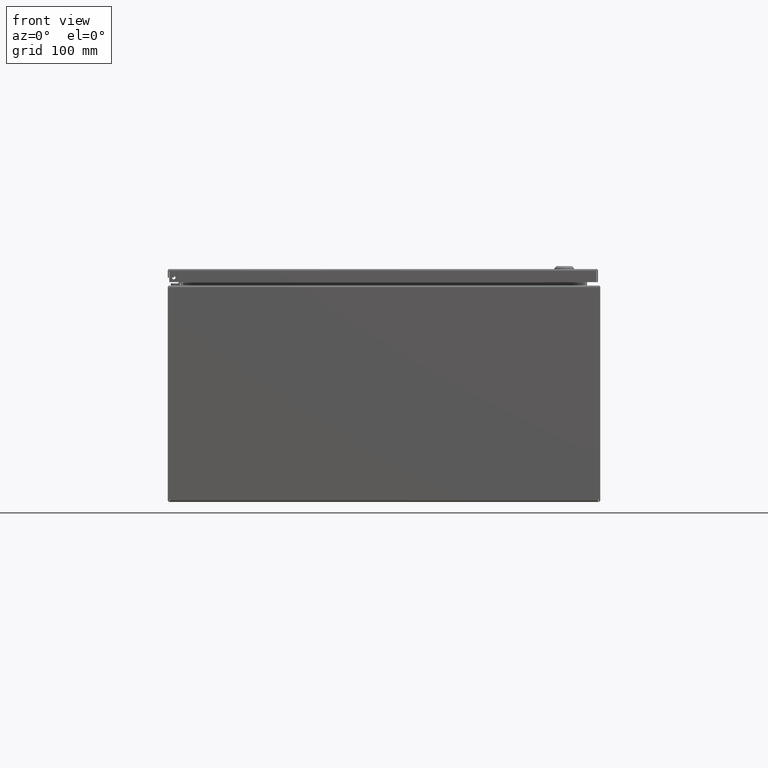
[diagram: clean part render]
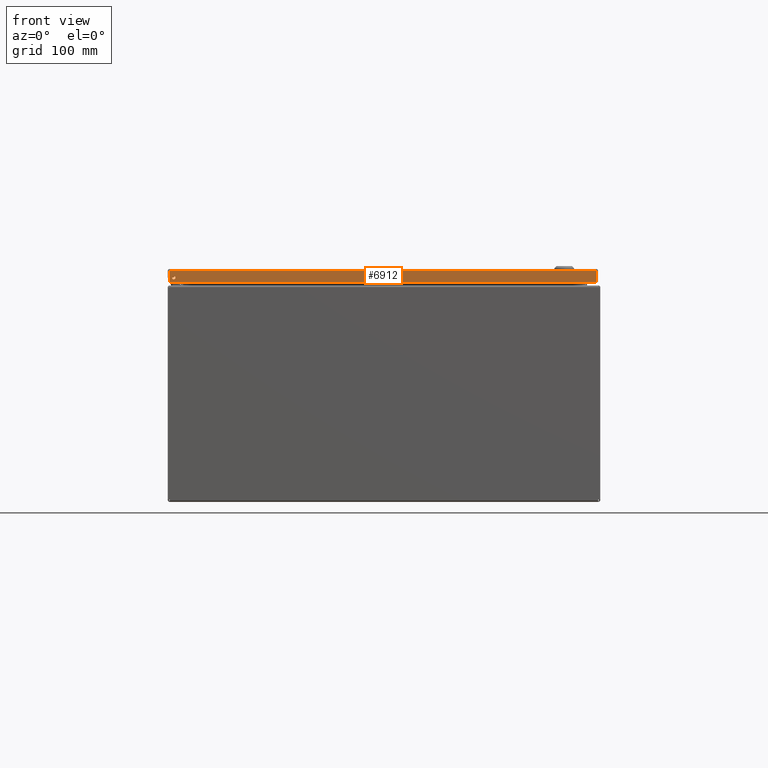
[diagram: same view with one face highlighted and labeled with its STEP entity id]
A machine part, front view. The second image highlights one B-rep face of the part: STEP entity #6912.
In plain terms, the highlighted planar face has unit normal (-0, 1, 0).
Its self-contained STEP definition (entity closure, byte-faithful):
#6480=CARTESIAN_POINT('',(23.633951456543986,5.892567E-017,0.479999999998429));
#6481=VERTEX_POINT('',#6480);
#6482=CARTESIAN_POINT('',(23.539951456543985,0.0,0.479999999998429));
#6483=DIRECTION('',(0.0,1.0,0.0));
#6484=DIRECTION('',(-1.0,0.0,0.0));
#6485=AXIS2_PLACEMENT_3D('',#6482,#6483,#6484);
#6486=CIRCLE('',#6485,0.094000000000000);
#6487=EDGE_CURVE('',#6481,#6481,#6486,.T.);
#6658=CARTESIAN_POINT('',(0.085048543456041,1.537712E-015,0.105250000000000));
#6659=VERTEX_POINT('',#6658);
#6660=CARTESIAN_POINT('',(23.789951456543960,1.537712E-015,0.105250000000000));
#6661=VERTEX_POINT('',#6660);
#6662=CARTESIAN_POINT('',(0.085048543456040,1.537479E-015,0.105250000000000));
#6663=DIRECTION('',(1.0,0.0,0.0));
#6664=VECTOR('',#6663,23.704902913087921);
#6665=LINE('',#6662,#6664);
#6666=EDGE_CURVE('',#6659,#6661,#6665,.T.);
#6747=CARTESIAN_POINT('',(23.789951456543960,1.638181E-015,0.730000000000000));
#6748=VERTEX_POINT('',#6747);
#6749=CARTESIAN_POINT('',(23.789951456543960,1.638181E-015,0.730000000000000));
#6750=DIRECTION('',(0.0,0.0,-1.0));
#6751=VECTOR('',#6750,0.624750000000000);
#6752=LINE('',#6749,#6751);
#6753=EDGE_CURVE('',#6748,#6661,#6752,.T.);
#6862=CARTESIAN_POINT('',(0.085048543456039,1.638181E-015,0.730000000000000));
#6863=VERTEX_POINT('',#6862);
#6864=CARTESIAN_POINT('',(0.085048543456039,1.537712E-015,0.105250000000000));
#6865=DIRECTION('',(0.0,0.0,1.0));
#6866=VECTOR('',#6865,0.624750000000000);
#6867=LINE('',#6864,#6866);
#6868=EDGE_CURVE('',#6659,#6863,#6867,.T.);
#6886=CARTESIAN_POINT('',(0.085048543456039,1.638181E-015,0.730000000000000));
#6887=DIRECTION('',(1.0,0.0,0.0));
#6888=VECTOR('',#6887,23.704902913087924);
#6889=LINE('',#6886,#6888);
#6890=EDGE_CURVE('',#6863,#6748,#6889,.T.);
#6898=CARTESIAN_POINT('',(11.937500000000000,1.581051E-015,0.374747570757023));
#6899=DIRECTION('',(0.0,1.0,0.0));
#6900=DIRECTION('',(1.0,0.0,0.0));
#6901=AXIS2_PLACEMENT_3D('',#6898,#6899,#6900);
#6902=PLANE('',#6901);
#6903=ORIENTED_EDGE('',*,*,#6666,.T.);
#6904=ORIENTED_EDGE('',*,*,#6753,.F.);
#6905=ORIENTED_EDGE('',*,*,#6890,.F.);
#6906=ORIENTED_EDGE('',*,*,#6868,.F.);
#6907=EDGE_LOOP('',(#6903,#6904,#6905,#6906));
#6908=FACE_OUTER_BOUND('',#6907,.T.);
#6909=ORIENTED_EDGE('',*,*,#6487,.T.);
#6910=EDGE_LOOP('',(#6909));
#6911=FACE_BOUND('',#6910,.T.);
#6912=ADVANCED_FACE('',(#6908,#6911),#6902,.F.);